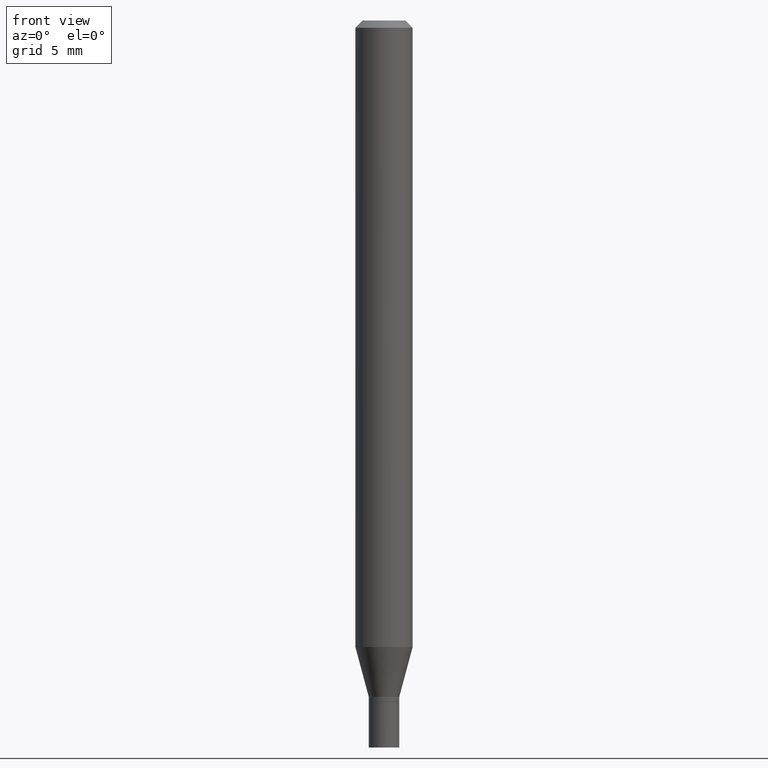
[diagram: clean part render]
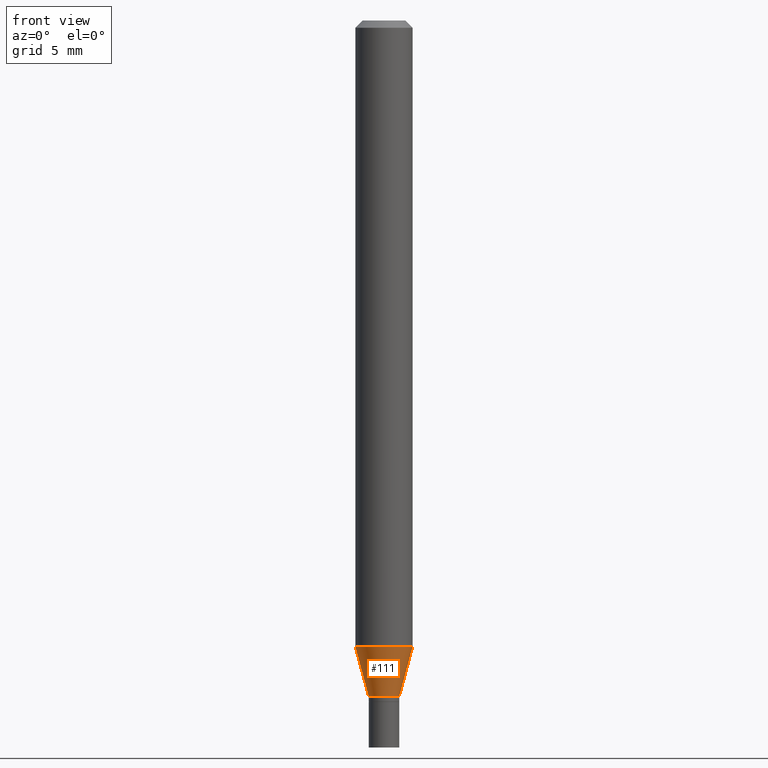
[diagram: same view with one face highlighted and labeled with its STEP entity id]
A machine part, front view. The second image highlights one B-rep face of the part: STEP entity #111.
In plain terms, the highlighted conical surface has half-angle 15 deg.
Its self-contained STEP definition (entity closure, byte-faithful):
#15 = LINE ( 'NONE', #198, #425 ) ;
#28 = DIRECTION ( 'NONE',  ( 0.2588190451025214611, 1.565188264969620982E-15, 0.9659258262890679791 ) ) ;
#29 = VERTEX_POINT ( 'NONE', #100 ) ;
#43 = CARTESIAN_POINT ( 'NONE',  ( 0.05904999999999999832, -4.925719027053834940E-15, -1.292682000251476726 ) ) ;
#72 = VERTEX_POINT ( 'NONE', #214 ) ;
#78 = CIRCLE ( 'NONE', #395, 0.05904999999999999832 ) ;
#97 = CARTESIAN_POINT ( 'NONE',  ( 0.03149999999999965328, -5.092325532702724703E-15, -1.395500000000000185 ) ) ;
#100 = CARTESIAN_POINT ( 'NONE',  ( -0.05904999999999999832, -4.093799595470121316E-15, -1.292682000251476726 ) ) ;
#111 = ADVANCED_FACE ( 'NONE', ( #180 ), #197, .T. ) ;
#120 = EDGE_CURVE ( 'NONE', #72, #368, #258, .T. ) ;
#146 = DIRECTION ( 'NONE',  ( 1.000000000000000000, -6.982962677686271444E-15, 0.000000000000000000 ) ) ;
#150 = CARTESIAN_POINT ( 'NONE',  ( 3.161213507931992850E-29, -4.513375080936461598E-15, -1.292682000251476726 ) ) ;
#159 = DIRECTION ( 'NONE',  ( -0.2588190451025214611, 5.211531920934550253E-15, 0.9659258262890679791 ) ) ;
#177 = DIRECTION ( 'NONE',  ( -2.445468806185136597E-29, 3.491481338843145583E-15, 1.000000000000000000 ) ) ;
#179 = ORIENTED_EDGE ( 'NONE', *, *, #187, .F. ) ;
#180 = FACE_OUTER_BOUND ( 'NONE', #278, .T. ) ;
#187 = EDGE_CURVE ( 'NONE', #29, #210, #78, .T. ) ;
#197 = CONICAL_SURFACE ( 'NONE', #281, 0.03149999999999965328, 0.2617993877991501850 ) ;
#198 = CARTESIAN_POINT ( 'NONE',  ( -0.03149999999999965328, -4.648541246591180735E-15, -1.395500000000000185 ) ) ;
#201 = DIRECTION ( 'NONE',  ( 1.000000000000000000, -6.982962677686271444E-15, 0.000000000000000000 ) ) ;
#210 = VERTEX_POINT ( 'NONE', #43 ) ;
#214 = CARTESIAN_POINT ( 'NONE',  ( -0.03149999999999965328, -4.371170421030651026E-15, -1.395500000000000185 ) ) ;
#249 = DIRECTION ( 'NONE',  ( 1.000000000000000000, -6.982962677686273021E-15, 0.000000000000000000 ) ) ;
#258 = CIRCLE ( 'NONE', #287, 0.03149999999999965328 ) ;
#265 = EDGE_CURVE ( 'NONE', #72, #29, #15, .T. ) ;
#270 = LINE ( 'NONE', #448, #364 ) ;
#273 = ORIENTED_EDGE ( 'NONE', *, *, #120, .T. ) ;
#278 = EDGE_LOOP ( 'NONE', ( #392, #273, #322, #179 ) ) ;
#281 = AXIS2_PLACEMENT_3D ( 'NONE', #324, #465, #146 ) ;
#286 = DIRECTION ( 'NONE',  ( -2.445468806185136597E-29, 3.491481338843145583E-15, 1.000000000000000000 ) ) ;
#287 = AXIS2_PLACEMENT_3D ( 'NONE', #413, #177, #201 ) ;
#322 = ORIENTED_EDGE ( 'NONE', *, *, #378, .T. ) ;
#324 = CARTESIAN_POINT ( 'NONE',  ( 3.412651719031358713E-29, -4.872362208355609731E-15, -1.395500000000000185 ) ) ;
#364 = VECTOR ( 'NONE', #28, 39.37007874015748143 ) ;
#368 = VERTEX_POINT ( 'NONE', #97 ) ;
#378 = EDGE_CURVE ( 'NONE', #368, #210, #270, .T. ) ;
#392 = ORIENTED_EDGE ( 'NONE', *, *, #265, .F. ) ;
#395 = AXIS2_PLACEMENT_3D ( 'NONE', #150, #286, #249 ) ;
#413 = CARTESIAN_POINT ( 'NONE',  ( 3.412651719031358713E-29, -4.872362208355609731E-15, -1.395500000000000185 ) ) ;
#425 = VECTOR ( 'NONE', #159, 39.37007874015748143 ) ;
#448 = CARTESIAN_POINT ( 'NONE',  ( 0.03149999999999965328, -5.092325532702724703E-15, -1.395500000000000185 ) ) ;
#465 = DIRECTION ( 'NONE',  ( -2.445468806185136597E-29, 3.491481338843145583E-15, 1.000000000000000000 ) ) ;